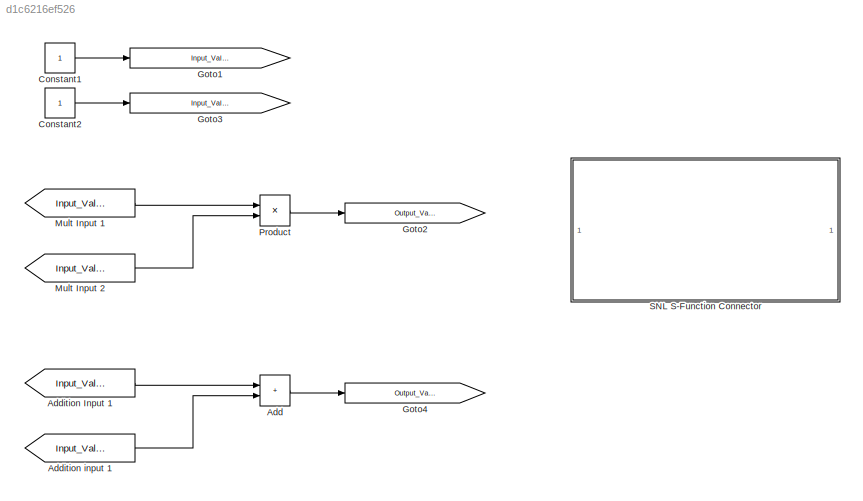
MODEL slx_d1c6216ef526
KIND model
CONFIG AbsTol = auto
CONFIG EnableMultiTasking = off
CONFIG FixedStep = auto
CONFIG MaxStep = auto
CONFIG MinStep = auto
CONFIG RelTol = 1e-3
CONFIG SampleTimeConstraint = Unconstrained
CONFIG SolverName = FixedStepAuto
CONFIG StartTime = 0.0
CONFIG StopTime = inf
BLOCK [Sum] Add
  IconShape = rectangular
BLOCK [From] Addition Input 1
  GotoTag = Input_Value_1
  TagVisibility = global
BLOCK [From] Addition input 1
  GotoTag = Input_Value_2
  TagVisibility = global
BLOCK [Constant] Constant1
BLOCK [Constant] Constant2
BLOCK [Goto] Goto1
  GotoTag = Input_Value_1_Internal
  TagVisibility = global
BLOCK [Goto] Goto2
  GotoTag = Output_Value_1
  TagVisibility = global
BLOCK [Goto] Goto3
  GotoTag = Input_Value_2_Internal
  TagVisibility = global
BLOCK [Goto] Goto4
  GotoTag = Output_Value_2
  TagVisibility = global
BLOCK [From] Mult Input 1
  GotoTag = Input_Value_1
  TagVisibility = global
BLOCK [From] Mult Input 2
  GotoTag = Input_Value_2
  TagVisibility = global
BLOCK [Product] Product
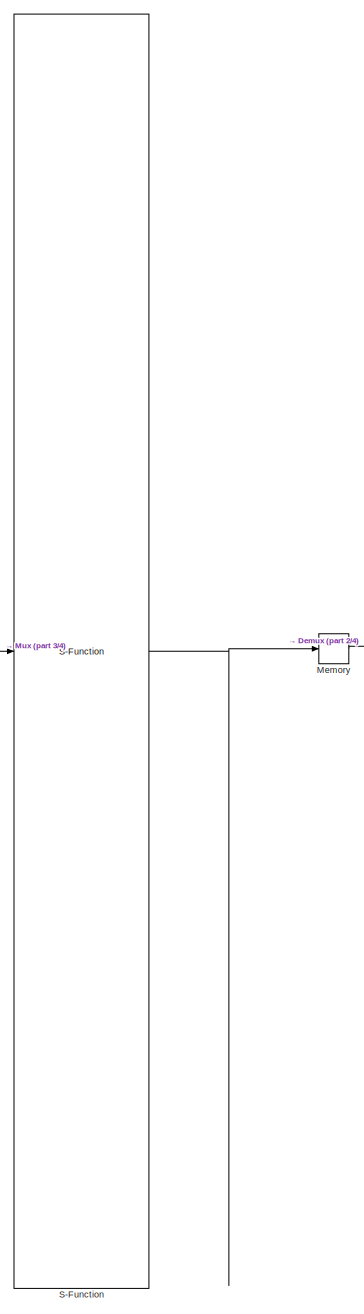
[diagram: SNL S-Function Connector - part 1/4, left side, full height]
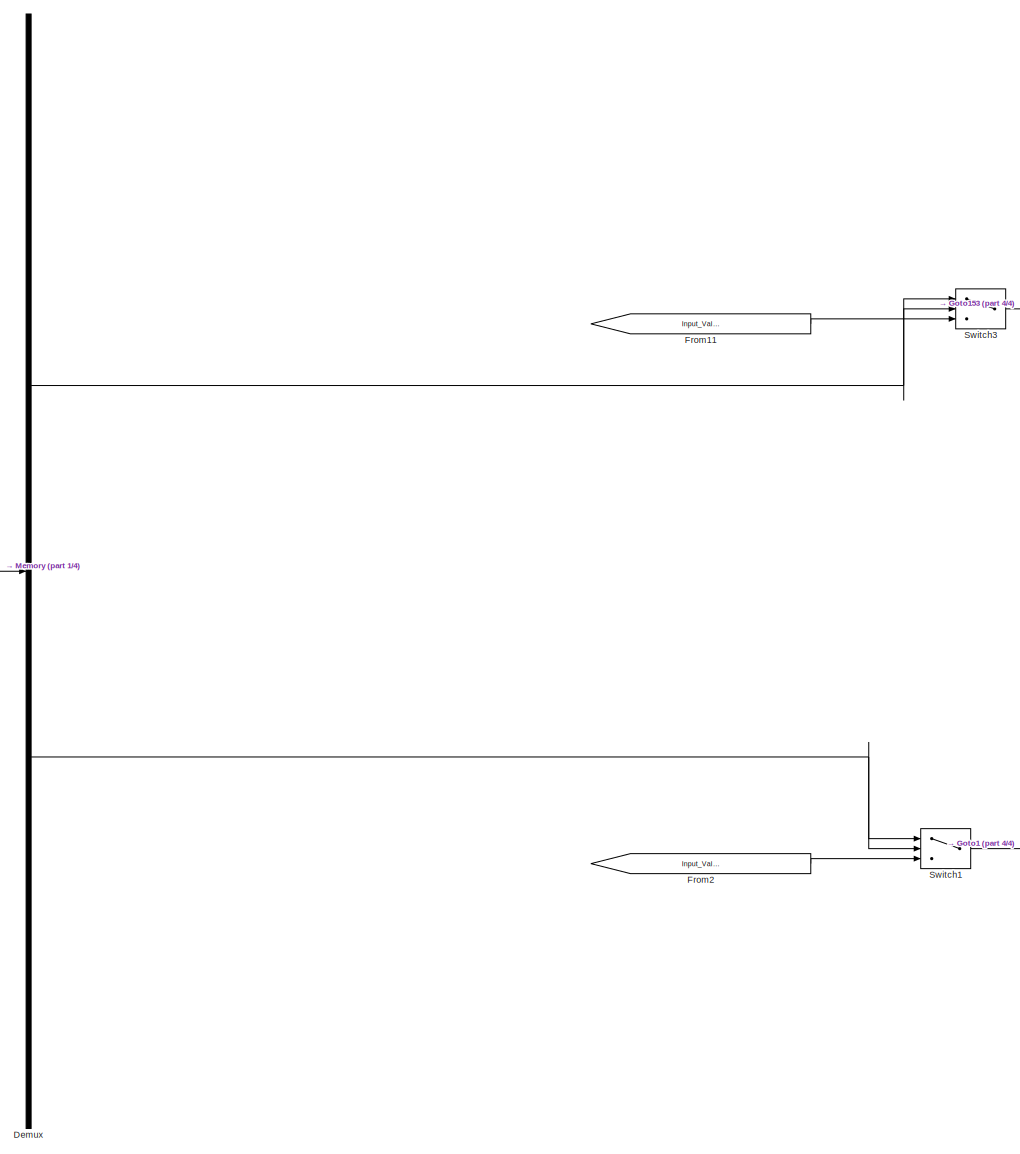
[diagram: SNL S-Function Connector - part 2/4, right side, full height]
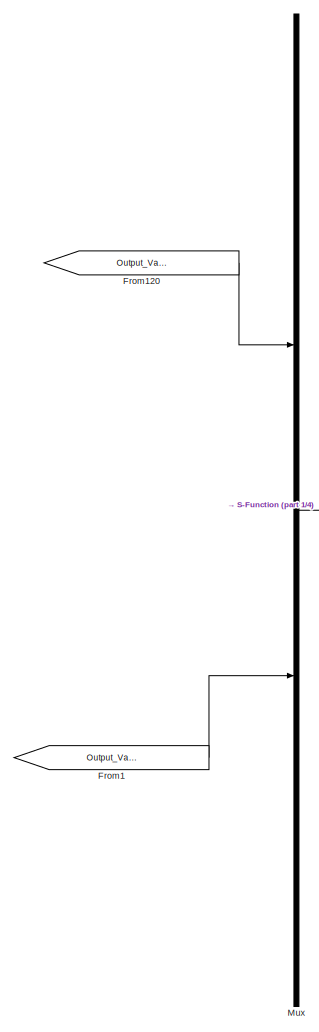
[diagram: SNL S-Function Connector - part 3/4, left side, full height]
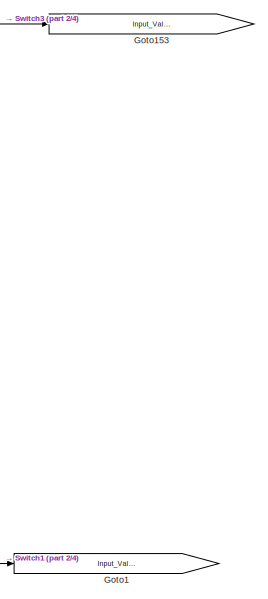
[diagram: SNL S-Function Connector - part 4/4, middle right region]
BLOCK [SubSystem] SNL S-Function Connector
BLOCK [Demux] SNL S-Function Connector/Demux
  Outputs = 2
BLOCK [From] SNL S-Function Connector/From1
  GotoTag = Output_Value_2
  TagVisibility = global
BLOCK [From] SNL S-Function Connector/From11
  GotoTag = Input_Value_1_Internal
  TagVisibility = global
BLOCK [From] SNL S-Function Connector/From120
  GotoTag = Output_Value_1
  TagVisibility = global
BLOCK [From] SNL S-Function Connector/From2
  GotoTag = Input_Value_2_Internal
  TagVisibility = global
BLOCK [Goto] SNL S-Function Connector/Goto1
  GotoTag = Input_Value_2
  TagVisibility = global
BLOCK [Goto] SNL S-Function Connector/Goto153
  GotoTag = Input_Value_1
  TagVisibility = global
BLOCK [Memory] SNL S-Function Connector/Memory
  InitialCondition = -100000000000000
BLOCK [Mux] SNL S-Function Connector/Mux
  DisplayOption = bar
  Inputs = 2
BLOCK [S-Function] SNL S-Function Connector/S-Function
  EnableBusSupport = off
  FunctionName = sfun_connector
  Parameters = 'Output_Value_1;Output_Value_2','Input_Value_1;Input_Value_2'
  SFcnIsStateOwnerBlock = off
  SFunctionDeploymentMode = off
BLOCK [Switch] SNL S-Function Connector/Switch1
  Criteria = u2 > Threshold
  InputSameDT = off
  SaturateOnIntegerOverflow = off
  Threshold = -100000000000000
BLOCK [Switch] SNL S-Function Connector/Switch3
  Criteria = u2 > Threshold
  InputSameDT = off
  SaturateOnIntegerOverflow = off
  Threshold = -100000000000000
LINE Add:1 -> Goto4:1
LINE Addition Input 1:1 -> Add:1
LINE Addition input 1:1 -> Add:2
LINE Constant1:1 -> Goto1:1
LINE Constant2:1 -> Goto3:1
LINE Mult Input 1:1 -> Product:1
LINE Mult Input 2:1 -> Product:2
LINE Product:1 -> Goto2:1
NET SNL S-Function Connector/Demux:1 -> SNL S-Function Connector/Switch3:1, SNL S-Function Connector/Switch3:2
NET SNL S-Function Connector/Demux:2 -> SNL S-Function Connector/Switch1:1, SNL S-Function Connector/Switch1:2
LINE SNL S-Function Connector/From11:1 -> SNL S-Function Connector/Switch3:3
LINE SNL S-Function Connector/From120:1 -> SNL S-Function Connector/Mux:1
LINE SNL S-Function Connector/From1:1 -> SNL S-Function Connector/Mux:2
LINE SNL S-Function Connector/From2:1 -> SNL S-Function Connector/Switch1:3
LINE SNL S-Function Connector/Memory:1 -> SNL S-Function Connector/Demux:1
LINE SNL S-Function Connector/Mux:1 -> SNL S-Function Connector/S-Function:1
LINE SNL S-Function Connector/S-Function:1 -> SNL S-Function Connector/Memory:1
LINE SNL S-Function Connector/Switch1:1 -> SNL S-Function Connector/Goto1:1
LINE SNL S-Function Connector/Switch3:1 -> SNL S-Function Connector/Goto153:1
note: NET lines group one-source signal fan-out (src -> all destinations, sorted); 1:1 wires keep LINE
